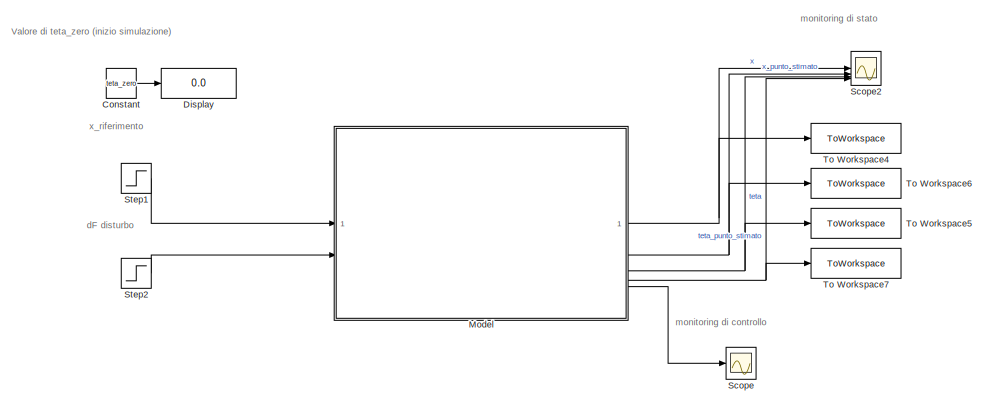
[diagram: root canvas - part 1/2, left side, full height]
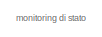
[diagram: root canvas - part 2/2, top right region]
MODEL slx_71f038186083
KIND model
CONFIG AbsTol = auto
CONFIG EnableMultiTasking = off
CONFIG FixedStep = auto
CONFIG MaxStep = auto
CONFIG MinStep = auto
CONFIG RelTol = 1e-3
CONFIG SampleTimeConstraint = Unconstrained
CONFIG SolverName = VariableStepAuto
CONFIG StartTime = 0.0
CONFIG StopTime = 30
BLOCK [Constant] Constant
  Value = teta_zero
BLOCK [Display] Display
  Decimation = 1
BLOCK [ModelReference] Model
  ModelNameDialog = sistema_con_reazione_stato.slx
  ModelReferenceVersion = 9.54
BLOCK [Scope] Scope
  ActiveDisplayYMaximum = 1
  ActiveDisplayYMinimum = -1
  DataLoggingVariableName = ScopeData2
  Floating = off
  GraphicalSettings = {"Style":{"BackgroundColor":[0.12941176470588237,0.12941176470588237,0.12941176470588237],"AxesColor":[0.07058823529411765,0.07058823529411765,0.07058823529411765],"LabelsColor":[0.8509803921568627,0.8509803921568627,0.8509803921568627],"PreserveColors":false,"Visible":[true],"LineStyle":["-"],"LineWidth":[1.5],"BarWidth":[0.9],"LineColor":["auto"],"LineFaceAlpha":[1],"LineEdgeAlpha":[1],"Marker":...<+1902ch>
  MultipleDisplayCache = [{"MaxYLimMag":1,"MaxYLimReal":1,"MinYLimMag":0,"MinYLimReal":-1,"PlotAsMagnitudePhase":false,"ShowGrid":true,"ShowLegend":false,"Title":"%<SignalLabel>","YLabel":""}]
  NumInputPorts = 1
  ScopeFrameLocation = window
  WasSavedAsWebScope = on
  WindowPosition = [403.000000,211.000000,560.000000,420.000000,]
BLOCK [Scope] Scope2
  ActiveDisplayString = 4
  ActiveDisplayYMaximum = 0.053248127870999085
  ActiveDisplayYMinimum = -0.11621866519085522
  ClipboardFcn = % eseguo la simulazione\nsimOut = sim('taratura_reazione_stato', 10); %10 secondi
  Floating = off
  GraphicalSettings = {"Style":{"BackgroundColor":[0.12941176470588237,0.12941176470588237,0.12941176470588237],"AxesColor":[0.07058823529411765,0.07058823529411765,0.07058823529411765],"LabelsColor":[0.8509803921568627,0.8509803921568627,0.8509803921568627],"PreserveColors":false,"Visible":[true,true,true,true],"LineStyle":["-","-","-","-"],"LineWidth":[1.5,1.5,1.5,1.5],"BarWidth":[0.9,0.9,0.9,0.9],"LineColor":[[1,0,0...<+3596ch>
  LayoutDimensionsString = [2, 2]
  MultipleDisplayCache = [{"MaxYLimMag":2.6176509615269166,"MaxYLimReal":0.29085010683632456,"MinYLimMag":0,"MinYLimReal":-2.6176509615269166,"PlotAsMagnitudePhase":false,"ShowGrid":true,"ShowLegend":true,"Title":"%<SignalLabel>","YLabel":""},{"MaxYLimMag":0.97642764198795939,"MaxYLimReal":0.10849196022112517,"MinYLimMag":0,"MinYLimReal":-0.97642764198795939,"PlotAsMagnitudePhase":false,"ShowGrid":true,"ShowLegend":true,"...<+477ch>
  NumInputPorts = 4
  ScopeFrameLocation = window
  ShowLegend = on
  WasSavedAsWebScope = on
  WindowPosition = [67.000000,38.000000,1300.000000,699.000000,]
BLOCK [Step] Step1
  After = x_rif_step_amp
  SampleTime = 0
  Time = x_rif_step_time
BLOCK [Step] Step2
  After = dF_step_amp
  SampleTime = 0
  Time = dF_step_time
BLOCK [ToWorkspace] To Workspace4
  FixptAsFi = on
  MaxDataPoints = inf
  SampleTime = -1
  SaveFormat = Timeseries
  VariableName = x_sim
BLOCK [ToWorkspace] To Workspace5
  FixptAsFi = on
  MaxDataPoints = inf
  SampleTime = -1
  SaveFormat = Timeseries
  VariableName = teta_sim
BLOCK [ToWorkspace] To Workspace6
  FixptAsFi = on
  MaxDataPoints = inf
  SampleTime = -1
  SaveFormat = Timeseries
  VariableName = x_punto_sim
BLOCK [ToWorkspace] To Workspace7
  FixptAsFi = on
  MaxDataPoints = inf
  SampleTime = -1
  SaveFormat = Timeseries
  VariableName = teta_punto_sim
ANNOTATION (root): Valore di teta_zero (inizio simulazione)
ANNOTATION (root): dF disturbo
ANNOTATION (root): monitoring di controllo
ANNOTATION (root): monitoring di stato
ANNOTATION (root): x_riferimento
LINE Constant:1 -> Display:1
NET Model:1 -> Scope2:1, To Workspace4:1
NET Model:2 -> Scope2:2, To Workspace6:1
NET Model:3 -> Scope2:3, To Workspace5:1
NET Model:4 -> Scope2:4, To Workspace7:1
LINE Model:5 -> Scope:1
LINE Step1:1 -> Model:1
LINE Step2:1 -> Model:2
note: NET lines group one-source signal fan-out (src -> all destinations, sorted); 1:1 wires keep LINE
